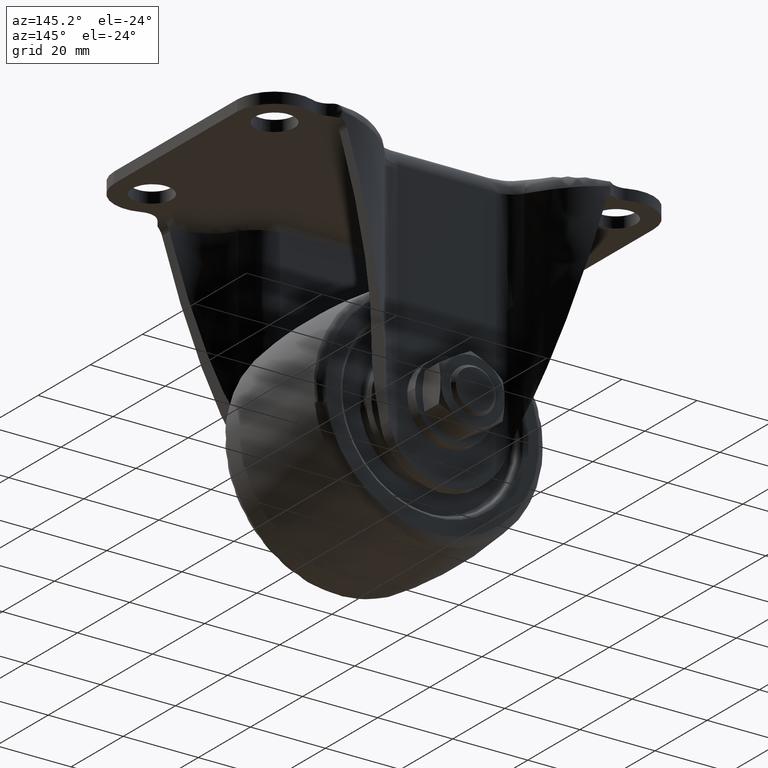
[diagram: clean part render]
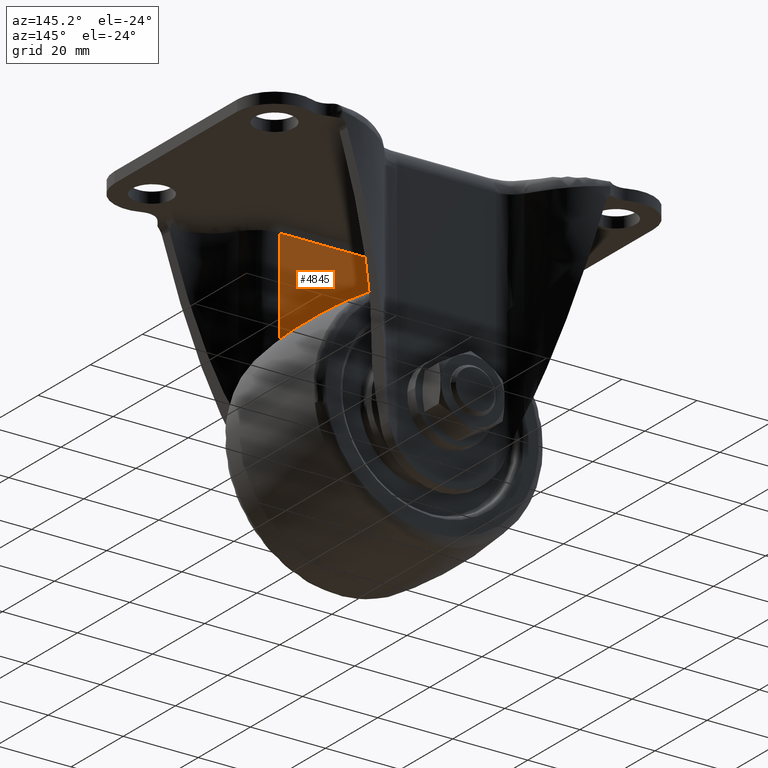
[diagram: same view with one face highlighted and labeled with its STEP entity id]
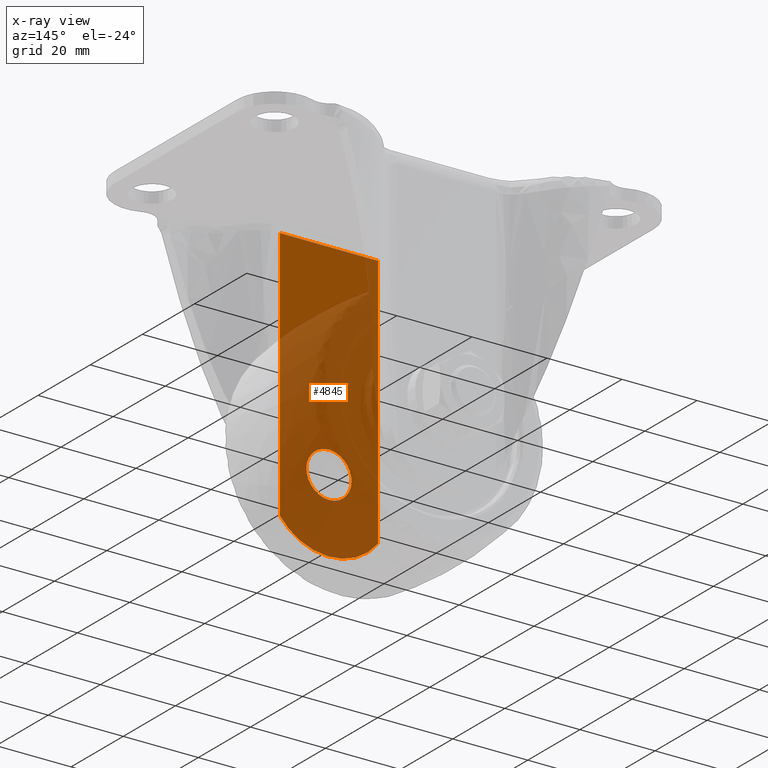
[diagram: x-ray of the same camera — body ghosted, the highlighted face saturated]
A machine part, auxiliary view. The second image highlights one B-rep face of the part: STEP entity #4845.
The next image is the same camera in x-ray: the body ghosted, the highlighted face saturated — about 79% of this face is hidden behind the body in this view.
In plain terms, the highlighted face is a freeform B-spline surface patch.
Its self-contained STEP definition (entity closure, byte-faithful):
#3617=CARTESIAN_POINT('',(5.998885138503171,-21.100000000000001,-59.133098277194982));
#3618=VERTEX_POINT('',#3617);
#3619=CARTESIAN_POINT('',(0.000095000000016,-21.100000000000001,-65.510000000000005));
#3620=VERTEX_POINT('',#3619);
#3621=CARTESIAN_POINT('',(5.998885138503171,-21.100000000000001,-59.133098277194982));
#3622=CARTESIAN_POINT('',(6.010095000000016,-21.100000000000005,-59.316377892474939));
#3623=CARTESIAN_POINT('',(6.010095000000016,-21.100000000000001,-59.500000000000000));
#3624=CARTESIAN_POINT('',(6.010095000000016,-21.100000000000009,-65.510000000000005));
#3625=CARTESIAN_POINT('',(0.000095000000016,-21.100000000000001,-65.510000000000005));
#3633=(BOUNDED_CURVE()B_SPLINE_CURVE(2,(#3621,#3622,#3623,#3624,#3625),.UNSPECIFIED.,.F.,.U.)B_SPLINE_CURVE_WITH_KNOTS((3,2,3),(0.239332962236200,0.250000000000000,0.500000000000000),.UNSPECIFIED.)CURVE()GEOMETRIC_REPRESENTATION_ITEM()RATIONAL_B_SPLINE_CURVE((0.976072041660839,0.987502787896624,1.0,0.707106781186548,1.0))REPRESENTATION_ITEM(''));
#3634=EDGE_CURVE('',#3618,#3620,#3633,.T.);
#3636=CARTESIAN_POINT('',(-5.998695138503139,-21.100000000000001,-59.866901722805032));
#3637=VERTEX_POINT('',#3636);
#3638=CARTESIAN_POINT('',(0.000095000000016,-21.100000000000001,-65.510000000000005));
#3639=CARTESIAN_POINT('',(-5.653548461913861,-21.100000000000009,-65.510000000000005));
#3640=CARTESIAN_POINT('',(-5.998695138503140,-21.100000000000001,-59.866901722805025));
#3648=(BOUNDED_CURVE()B_SPLINE_CURVE(2,(#3638,#3639,#3640),.UNSPECIFIED.,.F.,.U.)B_SPLINE_CURVE_WITH_KNOTS((3,3),(0.500000000000000,0.739332962236200),.UNSPECIFIED.)CURVE()GEOMETRIC_REPRESENTATION_ITEM()RATIONAL_B_SPLINE_CURVE((1.0,0.719603993289923,0.976072041660840))REPRESENTATION_ITEM(''));
#3649=EDGE_CURVE('',#3620,#3637,#3648,.T.);
#3716=CARTESIAN_POINT('',(0.000095000000016,-21.100000000000001,-53.490000000000002));
#3717=VERTEX_POINT('',#3716);
#3718=CARTESIAN_POINT('',(0.000095000000016,-21.100000000000001,-53.490000000000002));
#3719=CARTESIAN_POINT('',(5.653738461913885,-21.099999999999998,-53.489999999999995));
#3720=CARTESIAN_POINT('',(5.998885138503170,-21.099999999999994,-59.133098277194975));
#3728=(BOUNDED_CURVE()B_SPLINE_CURVE(2,(#3718,#3719,#3720),.UNSPECIFIED.,.F.,.U.)B_SPLINE_CURVE_WITH_KNOTS((3,3),(0.0,0.239332962236200),.UNSPECIFIED.)CURVE()GEOMETRIC_REPRESENTATION_ITEM()RATIONAL_B_SPLINE_CURVE((1.0,0.719603993289924,0.976072041660839))REPRESENTATION_ITEM(''));
#3729=EDGE_CURVE('',#3717,#3618,#3728,.T.);
#3763=CARTESIAN_POINT('',(-5.998695138503140,-21.100000000000001,-59.866901722805025));
#3764=CARTESIAN_POINT('',(-6.009904999999984,-21.099999999999998,-59.683622107525068));
#3765=CARTESIAN_POINT('',(-6.009904999999984,-21.100000000000001,-59.500000000000000));
#3766=CARTESIAN_POINT('',(-6.009904999999983,-21.100000000000009,-53.489999999999995));
#3767=CARTESIAN_POINT('',(0.000095000000016,-21.100000000000001,-53.490000000000002));
#3775=(BOUNDED_CURVE()B_SPLINE_CURVE(2,(#3763,#3764,#3765,#3766,#3767),.UNSPECIFIED.,.F.,.U.)B_SPLINE_CURVE_WITH_KNOTS((3,2,3),(0.739332962236200,0.750000000000000,1.0),.UNSPECIFIED.)CURVE()GEOMETRIC_REPRESENTATION_ITEM()RATIONAL_B_SPLINE_CURVE((0.976072041660840,0.987502787896624,1.0,0.707106781186548,1.0))REPRESENTATION_ITEM(''));
#3776=EDGE_CURVE('',#3637,#3717,#3775,.T.);
#4755=CARTESIAN_POINT('',(-13.112339000000080,-21.100000000000001,-72.615621673442291));
#4756=VERTEX_POINT('',#4755);
#4774=CARTESIAN_POINT('',(13.112529000000020,-21.100000000000001,-72.615372927514201));
#4775=VERTEX_POINT('',#4774);
#4776=CARTESIAN_POINT('',(-13.112339000000080,-21.100000000000001,-72.615621673442291));
#4777=CARTESIAN_POINT('',(-12.441671233934970,-21.100000000000069,-73.493919673409067));
#4778=CARTESIAN_POINT('',(-11.275391542179941,-21.099999999999991,-74.738494741876011));
#4779=CARTESIAN_POINT('',(-9.345156665717825,-21.099999999999959,-76.248175173663398));
#4780=CARTESIAN_POINT('',(-7.582670855190055,-21.100000000000041,-77.308883810303200));
#4781=CARTESIAN_POINT('',(-5.151480039709848,-21.100000000000030,-78.362906067411160));
#4782=CARTESIAN_POINT('',(-2.373144310247079,-21.099999999999849,-79.033351764332224));
#4783=CARTESIAN_POINT('',(0.318076109936956,-21.100000000000470,-79.149098792043304));
#4784=CARTESIAN_POINT('',(2.993559058120455,-21.100000000000041,-78.898902297610888));
#4785=CARTESIAN_POINT('',(5.646612191014064,-21.099999999999959,-78.218174162977121));
#4786=CARTESIAN_POINT('',(8.538890300588115,-21.099999999999952,-76.826345604906209));
#4787=CARTESIAN_POINT('',(11.034448907911541,-21.100000000000239,-75.001057275016649));
#4788=CARTESIAN_POINT('',(12.465794954024940,-21.099999999999589,-73.462290887955589));
#4789=CARTESIAN_POINT('',(13.112529000000020,-21.100000000000001,-72.615372927514201));
#4790=B_SPLINE_CURVE_WITH_KNOTS('',3,(#4776,#4777,#4778,#4779,#4780,#4781,#4782,#4783,#4784,#4785,#4786,#4787,#4788,#4789),.UNSPECIFIED.,.F.,.U.,(4,1,1,1,1,1,1,1,1,1,1,4),(0.000000103586348,3.315198802954864,5.091235878372974,7.340851918809424,9.472072705255645,13.024116681012970,15.865702947119440,17.523288659670200,21.075349648787739,24.035376716737819,27.113796305890070,30.310618016158742),.UNSPECIFIED.);
#4791=EDGE_CURVE('',#4756,#4775,#4790,.T.);
#4812=CARTESIAN_POINT('',(-14.422271105771211,-21.100000000000001,-82.806086042210453));
#4813=CARTESIAN_POINT('',(-14.422271105771211,-21.100000000000001,-1.193717849803464));
#4814=CARTESIAN_POINT('',(14.422461809176919,-21.100000000000001,-82.806086042210453));
#4815=CARTESIAN_POINT('',(14.422461809176919,-21.100000000000001,-1.193717849803464));
#4816=B_SPLINE_SURFACE_WITH_KNOTS('',1,1,((#4812,#4814),(#4813,#4815)),.UNSPECIFIED.,.F.,.F.,.U.,(2,2),(2,2),(0.0,81.612368192406990),(0.0,28.844732914948128),.UNSPECIFIED.);
#4817=CARTESIAN_POINT('',(-13.112339000000080,-21.100000000000001,-4.900000000000000));
#4818=VERTEX_POINT('',#4817);
#4819=CARTESIAN_POINT('',(-13.112339000000080,-21.100000000000001,-72.615621673442291));
#4820=CARTESIAN_POINT('',(-13.112339000000080,-21.100000000000001,-4.900000000000000));
#4821=QUASI_UNIFORM_CURVE('',1,(#4819,#4820),.UNSPECIFIED.,.F.,.U.);
#4822=EDGE_CURVE('',#4756,#4818,#4821,.T.);
#4823=ORIENTED_EDGE('',*,*,#4822,.T.);
#4824=CARTESIAN_POINT('',(13.112529000000020,-21.100000000000001,-4.900000000000000));
#4825=VERTEX_POINT('',#4824);
#4826=CARTESIAN_POINT('',(-13.112339000000080,-21.100000000000001,-4.900000000000000));
#4827=CARTESIAN_POINT('',(13.112529000000020,-21.100000000000001,-4.900000000000000));
#4828=QUASI_UNIFORM_CURVE('',1,(#4826,#4827),.UNSPECIFIED.,.F.,.U.);
#4829=EDGE_CURVE('',#4818,#4825,#4828,.T.);
#4830=ORIENTED_EDGE('',*,*,#4829,.T.);
#4831=CARTESIAN_POINT('',(13.112529000000020,-21.100000000000001,-72.615372927514201));
#4832=CARTESIAN_POINT('',(13.112529000000020,-21.100000000000001,-4.900000000000000));
#4833=QUASI_UNIFORM_CURVE('',1,(#4831,#4832),.UNSPECIFIED.,.F.,.U.);
#4834=EDGE_CURVE('',#4775,#4825,#4833,.T.);
#4835=ORIENTED_EDGE('',*,*,#4834,.F.);
#4836=ORIENTED_EDGE('',*,*,#4791,.F.);
#4837=EDGE_LOOP('',(#4823,#4830,#4835,#4836));
#4838=FACE_OUTER_BOUND('',#4837,.T.);
#4839=ORIENTED_EDGE('',*,*,#3649,.F.);
#4840=ORIENTED_EDGE('',*,*,#3634,.F.);
#4841=ORIENTED_EDGE('',*,*,#3729,.F.);
#4842=ORIENTED_EDGE('',*,*,#3776,.F.);
#4843=EDGE_LOOP('',(#4839,#4840,#4841,#4842));
#4844=FACE_BOUND('',#4843,.T.);
#4845=ADVANCED_FACE('',(#4838,#4844),#4816,.T.);